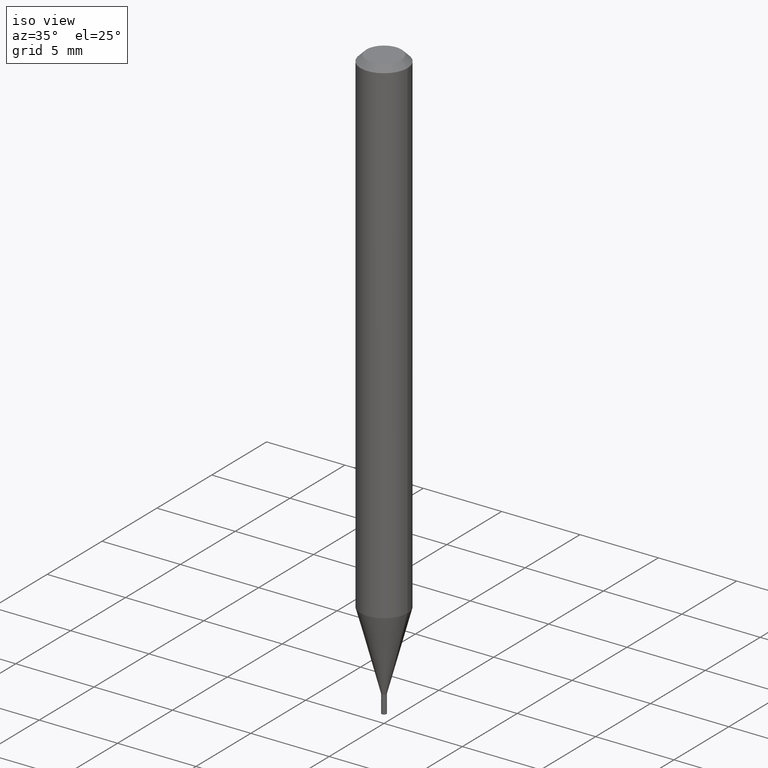
[diagram: clean part render]
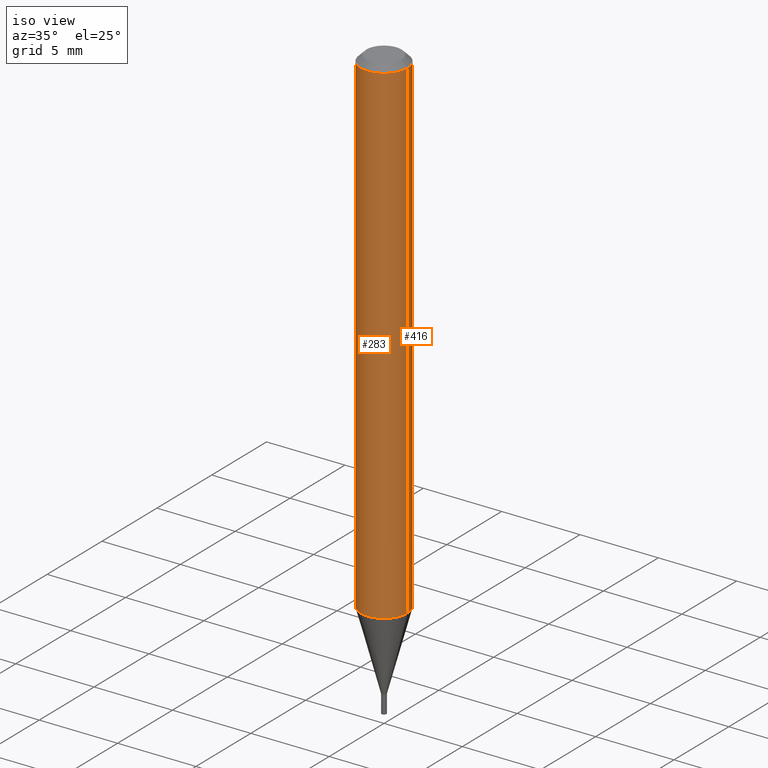
[diagram: same view with one multi-face feature highlighted, each face labeled with its STEP entity id]
A machine part, iso view. The highlighted faces form ONE feature: a constant-radius fillet chain: 2 tangent blend faces with common blend radius 1.4999 mm. The faces share edges in the B-rep.
Their STEP definitions:
[1] entity #416 (Cylinder):
#12 = LINE ( 'NONE', #441, #28 ) ;
#16 = ORIENTED_EDGE ( 'NONE', *, *, #212, .F. ) ;
#28 = VECTOR ( 'NONE', #149, 39.37007874015748143 ) ;
#39 = CARTESIAN_POINT ( 'NONE',  ( 0.05904999999999999832, -4.647161662000212105E-16, -0.01499999999999999944 ) ) ;
#56 = ORIENTED_EDGE ( 'NONE', *, *, #203, .T. ) ;
#59 = AXIS2_PLACEMENT_3D ( 'NONE', #160, #88, #332 ) ;
#62 = CARTESIAN_POINT ( 'NONE',  ( -0.05905000000000000526, -3.954348082703628668E-15, -1.252741499577714190 ) ) ;
#69 = EDGE_CURVE ( 'NONE', #412, #374, #12, .T. ) ;
#72 = CYLINDRICAL_SURFACE ( 'NONE', #296, 0.05904999999999999832 ) ;
#88 = DIRECTION ( 'NONE',  ( -2.445468806185136597E-29, 3.491481338843145583E-15, 1.000000000000000000 ) ) ;
#98 = DIRECTION ( 'NONE',  ( 1.000000000000000000, -6.982962677686266711E-15, 0.000000000000000000 ) ) ;
#124 = DIRECTION ( 'NONE',  ( -2.445468806185136597E-29, 3.491481338843145583E-15, 1.000000000000000000 ) ) ;
#149 = DIRECTION ( 'NONE',  ( -2.445468806185136877E-29, 3.491481338843145188E-15, 1.000000000000000000 ) ) ;
#160 = CARTESIAN_POINT ( 'NONE',  ( 3.063540259430890909E-29, -4.373923568169968161E-15, -1.252741499577714190 ) ) ;
#184 = VERTEX_POINT ( 'NONE', #345 ) ;
#198 = DIRECTION ( 'NONE',  ( -2.445468806185136597E-29, 3.491481338843145583E-15, 1.000000000000000000 ) ) ;
#201 = DIRECTION ( 'NONE',  ( 1.000000000000000000, -6.982962677686266711E-15, 4.876176775795936353E-29 ) ) ;
#203 = EDGE_CURVE ( 'NONE', #252, #184, #428, .T. ) ;
#206 = CARTESIAN_POINT ( 'NONE',  ( 0.05905000000000000526, -4.786267514287342293E-15, -1.252741499577714190 ) ) ;
#212 = EDGE_CURVE ( 'NONE', #374, #184, #385, .T. ) ;
#248 = ORIENTED_EDGE ( 'NONE', *, *, #442, .T. ) ;
#252 = VERTEX_POINT ( 'NONE', #62 ) ;
#257 = VECTOR ( 'NONE', #458, 39.37007874015748143 ) ;
#296 = AXIS2_PLACEMENT_3D ( 'NONE', #401, #198, #201 ) ;
#299 = CARTESIAN_POINT ( 'NONE',  ( 3.668203209277705088E-31, -5.237222008264718399E-17, -0.01499999999999999944 ) ) ;
#317 = CARTESIAN_POINT ( 'NONE',  ( -0.05904999999999999832, 4.195754854663391478E-16, -2.904631170795521892E-30 ) ) ;
#332 = DIRECTION ( 'NONE',  ( 1.000000000000000000, -6.982962677686273021E-15, 0.000000000000000000 ) ) ;
#345 = CARTESIAN_POINT ( 'NONE',  ( -0.05904999999999999832, -1.793572408659968325E-15, -0.01499999999999999944 ) ) ;
#374 = VERTEX_POINT ( 'NONE', #39 ) ;
#385 = CIRCLE ( 'NONE', #408, 0.05904999999999999832 ) ;
#401 = CARTESIAN_POINT ( 'NONE',  ( 0.000000000000000000, 0.000000000000000000, 0.000000000000000000 ) ) ;
#403 = EDGE_LOOP ( 'NONE', ( #248, #56, #16, #413 ) ) ;
#408 = AXIS2_PLACEMENT_3D ( 'NONE', #299, #124, #98 ) ;
#411 = CIRCLE ( 'NONE', #59, 0.05904999999999999832 ) ;
#412 = VERTEX_POINT ( 'NONE', #206 ) ;
#413 = ORIENTED_EDGE ( 'NONE', *, *, #69, .F. ) ;
#416 = ADVANCED_FACE ( 'NONE', ( #437 ), #72, .T. ) ;
#428 = LINE ( 'NONE', #317, #257 ) ;
#437 = FACE_OUTER_BOUND ( 'NONE', #403, .T. ) ;
#441 = CARTESIAN_POINT ( 'NONE',  ( 0.05904999999999999832, -4.123439461173740327E-16, 2.879382386107500220E-30 ) ) ;
#442 = EDGE_CURVE ( 'NONE', #412, #252, #411, .T. ) ;
#458 = DIRECTION ( 'NONE',  ( -2.445468806185136877E-29, 3.491481338843145188E-15, 1.000000000000000000 ) ) ;
[2] entity #283 (Cylinder):
#5 = EDGE_CURVE ( 'NONE', #184, #374, #37, .T. ) ;
#11 = ORIENTED_EDGE ( 'NONE', *, *, #388, .T. ) ;
#12 = LINE ( 'NONE', #441, #28 ) ;
#14 = ORIENTED_EDGE ( 'NONE', *, *, #5, .F. ) ;
#28 = VECTOR ( 'NONE', #149, 39.37007874015748143 ) ;
#37 = CIRCLE ( 'NONE', #162, 0.05904999999999999832 ) ;
#39 = CARTESIAN_POINT ( 'NONE',  ( 0.05904999999999999832, -4.647161662000212105E-16, -0.01499999999999999944 ) ) ;
#40 = DIRECTION ( 'NONE',  ( 1.000000000000000000, -6.982962677686266711E-15, 0.000000000000000000 ) ) ;
#62 = CARTESIAN_POINT ( 'NONE',  ( -0.05905000000000000526, -3.954348082703628668E-15, -1.252741499577714190 ) ) ;
#69 = EDGE_CURVE ( 'NONE', #412, #374, #12, .T. ) ;
#71 = CIRCLE ( 'NONE', #125, 0.05904999999999999832 ) ;
#80 = ORIENTED_EDGE ( 'NONE', *, *, #203, .F. ) ;
#125 = AXIS2_PLACEMENT_3D ( 'NONE', #172, #247, #316 ) ;
#149 = DIRECTION ( 'NONE',  ( -2.445468806185136877E-29, 3.491481338843145188E-15, 1.000000000000000000 ) ) ;
#155 = CARTESIAN_POINT ( 'NONE',  ( 3.668203209277705088E-31, -5.237222008264718399E-17, -0.01499999999999999944 ) ) ;
#162 = AXIS2_PLACEMENT_3D ( 'NONE', #155, #464, #40 ) ;
#170 = CYLINDRICAL_SURFACE ( 'NONE', #191, 0.05904999999999999832 ) ;
#172 = CARTESIAN_POINT ( 'NONE',  ( 3.063540259430890909E-29, -4.373923568169968161E-15, -1.252741499577714190 ) ) ;
#177 = DIRECTION ( 'NONE',  ( 1.000000000000000000, -6.982962677686266711E-15, 4.876176775795936353E-29 ) ) ;
#184 = VERTEX_POINT ( 'NONE', #345 ) ;
#191 = AXIS2_PLACEMENT_3D ( 'NONE', #353, #204, #177 ) ;
#203 = EDGE_CURVE ( 'NONE', #252, #184, #428, .T. ) ;
#204 = DIRECTION ( 'NONE',  ( -2.445468806185136597E-29, 3.491481338843145583E-15, 1.000000000000000000 ) ) ;
#206 = CARTESIAN_POINT ( 'NONE',  ( 0.05905000000000000526, -4.786267514287342293E-15, -1.252741499577714190 ) ) ;
#217 = EDGE_LOOP ( 'NONE', ( #80, #11, #450, #14 ) ) ;
#247 = DIRECTION ( 'NONE',  ( -2.445468806185136597E-29, 3.491481338843145583E-15, 1.000000000000000000 ) ) ;
#252 = VERTEX_POINT ( 'NONE', #62 ) ;
#257 = VECTOR ( 'NONE', #458, 39.37007874015748143 ) ;
#283 = ADVANCED_FACE ( 'NONE', ( #430 ), #170, .T. ) ;
#316 = DIRECTION ( 'NONE',  ( 1.000000000000000000, -6.982962677686273021E-15, 0.000000000000000000 ) ) ;
#317 = CARTESIAN_POINT ( 'NONE',  ( -0.05904999999999999832, 4.195754854663391478E-16, -2.904631170795521892E-30 ) ) ;
#345 = CARTESIAN_POINT ( 'NONE',  ( -0.05904999999999999832, -1.793572408659968325E-15, -0.01499999999999999944 ) ) ;
#353 = CARTESIAN_POINT ( 'NONE',  ( 0.000000000000000000, 0.000000000000000000, 0.000000000000000000 ) ) ;
#374 = VERTEX_POINT ( 'NONE', #39 ) ;
#388 = EDGE_CURVE ( 'NONE', #252, #412, #71, .T. ) ;
#412 = VERTEX_POINT ( 'NONE', #206 ) ;
#428 = LINE ( 'NONE', #317, #257 ) ;
#430 = FACE_OUTER_BOUND ( 'NONE', #217, .T. ) ;
#441 = CARTESIAN_POINT ( 'NONE',  ( 0.05904999999999999832, -4.123439461173740327E-16, 2.879382386107500220E-30 ) ) ;
#450 = ORIENTED_EDGE ( 'NONE', *, *, #69, .T. ) ;
#458 = DIRECTION ( 'NONE',  ( -2.445468806185136877E-29, 3.491481338843145188E-15, 1.000000000000000000 ) ) ;
#464 = DIRECTION ( 'NONE',  ( -2.445468806185136597E-29, 3.491481338843145583E-15, 1.000000000000000000 ) ) ;